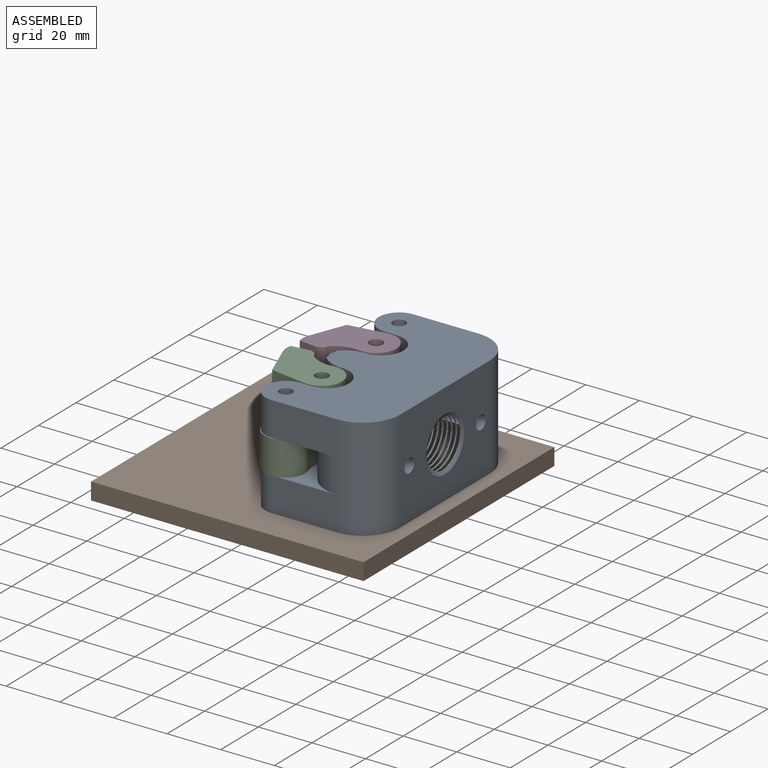
[diagram: assembled view]
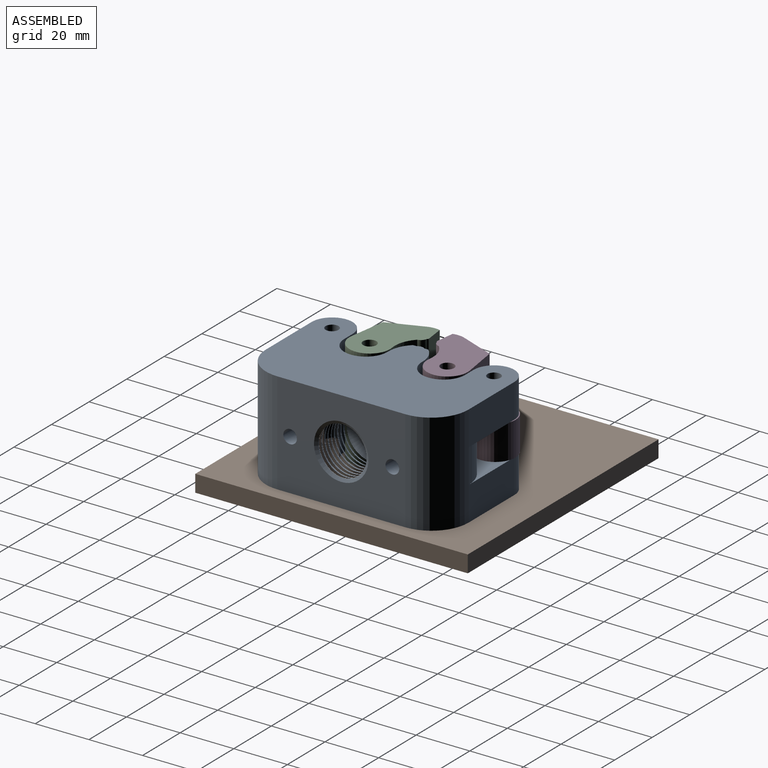
[diagram: assembled view, second angle]
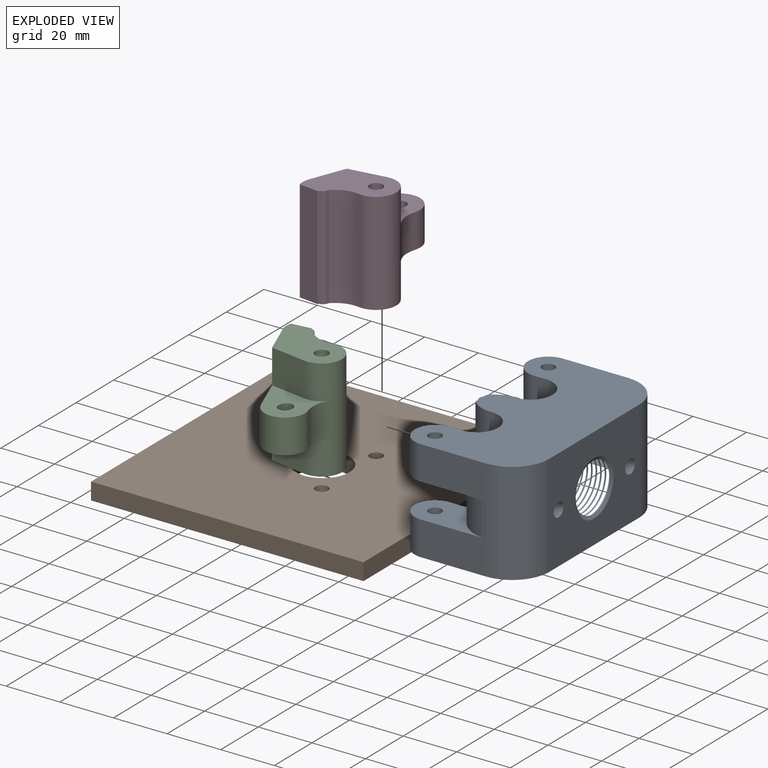
[diagram: exploded view]
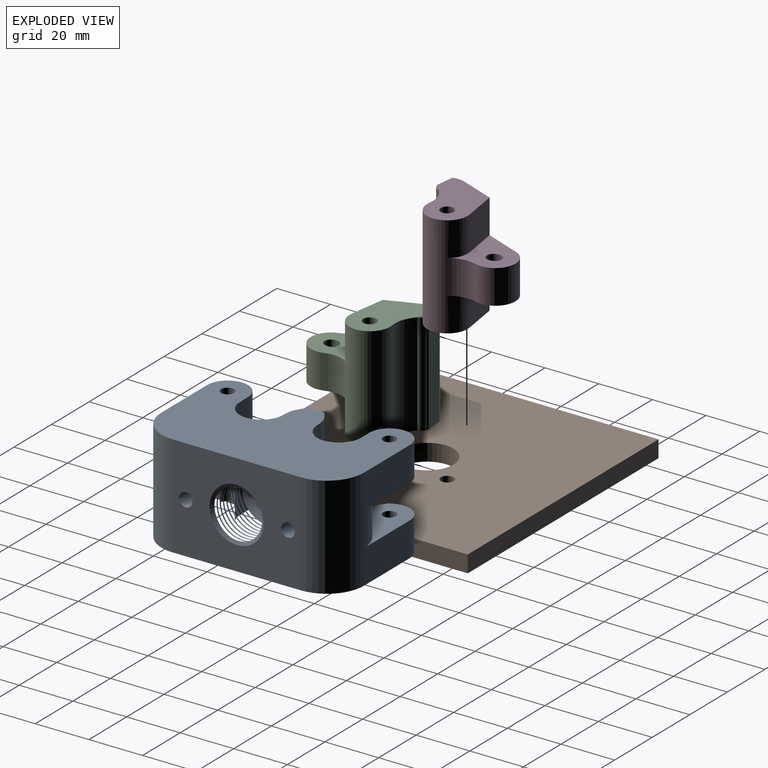
[diagram: exploded view, second angle]
ASSEMBLY  parts=4 mates=3
PART A: 41 faces, bbox 45.9x75.6x38.1 mm
  f0: plane 47.75x38.1mm, normal (1,0,0), area 1454.6mm2, adj f1,f2,f10,f11,f32,f37,f39
  f1: cylinder r=13.92mm len=38.1mm, axis (0,0,-1), area 1188.4mm2, adj f0,f8,f10,f11,f18,f21,f28,f31
  f2: cylinder r=13.92mm len=38.1mm, axis (0,0,-1), area 1188.4mm2, adj f0,f7,f10,f11,f13,f16,f23,f26
  f3: plane 38.1x1.38mm, normal (-1,0,0), area 52.4mm2, adj f4,f9,f10,f11
  f4: cylinder r=2.41mm len=38.1mm, axis (0,0,-1), area 121.5mm2, adj f3,f5,f10,f11
  f5: plane 38.1x1.38mm, normal (-1,0,0), area 52.4mm2, adj f4,f6,f10,f11
  f6: cylinder r=10.61mm len=38.1mm, axis (0,0,-1), area 352.2mm2, adj f5,f7,f10,f11
  f7: cylinder r=8.09mm len=38.1mm, axis (0,0,-1), area 862mm2, adj f2,f6,f10,f11,f15,f16,f25,f26
  f8: cylinder r=8.09mm len=38.1mm, axis (0,0,-1), area 862mm2, adj f1,f9,f10,f11,f17,f21,f27,f31
  f9: cylinder r=10.61mm len=38.1mm, axis (0,0,-1), area 352.2mm2, adj f3,f8,f10,f11
  f10: plane 75.59x45.87mm, normal (0,0,1), area 2639.8mm2, adj f0,f1,f2,f3,f4,f5,f6,f7
  f11: plane 75.59x45.87mm, normal (0,0,-1), area 2639.8mm2, adj f0,f1,f2,f3,f4,f5,f6,f7
  f12: cylinder r=7.61mm len=15.22mm, axis (0,0,-1), area 303.7mm2, adj f11,f13,f15,f16
  f13: plane 24.34x12.7mm, normal (0,-1,0), area 309.1mm2, adj f2,f11,f12,f16
  f14: cylinder r=2.41mm len=12.7mm, axis (0,0,-1), area 192.5mm2, adj f11,f16
  f15: plane 12.7x4.44mm, normal (0,1,0), area 56.4mm2, adj f7,f11,f12,f16
  f16: plane 31.95x19.86mm, normal (0,0,1), area 279mm2, adj f2,f7,f12,f13,f14,f15
  f17: plane 12.7x4.44mm, normal (0,-1,0), area 56.4mm2, adj f8,f11,f20,f21
  f18: plane 24.34x12.7mm, normal (0,1,0), area 309.1mm2, adj f1,f11,f20,f21
  f19: cylinder r=2.41mm len=12.7mm, axis (0,0,-1), area 192.5mm2, adj f11,f21
  f20: cylinder r=7.61mm len=15.22mm, axis (0,0,-1), area 303.7mm2, adj f11,f17,f18,f21
  f21: plane 31.95x19.86mm, normal (0,0,1), area 279mm2, adj f1,f8,f17,f18,f19,f20
  f22: cylinder r=7.61mm len=15.22mm, axis (0,0,-1), area 303.7mm2, adj f10,f23,f25,f26
  f23: plane 24.34x12.7mm, normal (0,-1,0), area 309.1mm2, adj f2,f10,f22,f26
  f24: cylinder r=2.41mm len=12.7mm, axis (0,0,-1), area 192.5mm2, adj f10,f26
  f25: plane 12.7x4.44mm, normal (0,1,0), area 56.4mm2, adj f7,f10,f22,f26
  f26: plane 31.95x19.86mm, normal (0,0,-1), area 279mm2, adj f2,f7,f22,f23,f24,f25
  f27: plane 12.7x4.44mm, normal (0,-1,0), area 56.4mm2, adj f8,f10,f30,f31
  f28: plane 24.34x12.7mm, normal (0,1,0), area 309.1mm2, adj f1,f10,f30,f31
  f29: cylinder r=2.41mm len=12.7mm, axis (0,0,-1), area 192.5mm2, adj f10,f31
  f30: cylinder r=7.61mm len=15.22mm, axis (0,0,-1), area 303.7mm2, adj f10,f27,f28,f31
  f31: plane 31.95x19.86mm, normal (0,0,-1), area 279mm2, adj f1,f8,f27,f28,f29,f30
  f32: cone r=10.16mm half-angle=60deg, axis (1,0,0), area 81.8mm2, adj f0,f33
  f33: cone r=9.65mm half-angle=60deg, axis (-1,0,0), area 32.5mm2, adj f32,f34
  f34: cylinder r=9.78mm len=19.55mm, axis (1,0,0), area 324.7mm2, adj f33,f36
  f35: plane 14.78x14.78mm, normal (1,0,0), area 171.7mm2, adj f36
  f36: cone r=7.45mm half-angle=60deg, axis (1,0,0), area 126.9mm2, adj f34,f35
  f37: cylinder r=2.54mm len=19.05mm, axis (1,0,0), area 304mm2, adj f0,f38
  f38: plane 5.08x5.08mm, normal (1,0,0), area 20.3mm2, adj f37
  f39: cylinder r=2.54mm len=19.05mm, axis (1,0,0), area 304mm2, adj f0,f40
  f40: plane 5.08x5.08mm, normal (1,0,0), area 20.3mm2, adj f39
PART B: 9 faces, bbox 101.6x101.6x6.4 mm
  f0: plane 101.6x6.35mm, normal (0,-1,0), area 645.2mm2, adj f1,f6,f7,f8
  f1: plane 101.6x6.35mm, normal (1,0,0), area 645.2mm2, adj f0,f2,f7,f8
  f2: plane 101.6x6.35mm, normal (0,1,0), area 645.2mm2, adj f1,f6,f7,f8
  f3: cylinder r=2.41mm len=6.35mm, axis (0,0,-1), area 96.3mm2, adj f7,f8
  f4: cylinder r=2.41mm len=6.35mm, axis (0,0,-1), area 96.3mm2, adj f7,f8
  f5: cylinder r=9.97mm len=19.95mm, axis (0,0,-1), area 398mm2, adj f7,f8
  f6: plane 101.6x6.35mm, normal (-1,0,0), area 645.2mm2, adj f0,f2,f7,f8
  f7: plane 101.6x101.6mm, normal (0,0,1), area 9973.4mm2, adj f0,f1,f2,f3,f4,f5,f6
  f8: plane 101.6x101.6mm, normal (0,0,-1), area 9973.4mm2, adj f0,f1,f2,f3,f4,f5,f6
PART C: 20 faces, bbox 35.2x30.8x38.1 mm
  f0: plane 13.23x12.7mm, normal (0.27,-0.96,0), area 174.6mm2, adj f6,f8,f11,f19
  f1: cylinder r=10.61mm len=38.1mm, axis (0,0,-1), area 382.2mm2, adj f2,f8,f10,f11
  f2: cylinder r=2.41mm len=38.1mm, axis (0,0,-1), area 121.5mm2, adj f1,f3,f10,f11
  f3: plane 38.1x0.52mm, normal (0.36,0.93,0), area 21.2mm2, adj f2,f4,f10,f11
  f4: plane 38.1x6.16mm, normal (-0.52,0.85,0), area 275.1mm2, adj f3,f5,f10,f11
  f5: cylinder r=7.49mm len=38.1mm, axis (0,0,-1), area 178.9mm2, adj f4,f6,f10,f11
  f6: plane 38.1x20.21mm, normal (-0.7,-0.72,0), area 710.2mm2, adj f0,f5,f7,f10,f11,f15,f18,f19
  f7: plane 13.23x12.7mm, normal (0.27,-0.96,0), area 174.6mm2, adj f6,f8,f10,f18
  f8: cylinder r=7.56mm len=38.1mm, axis (0,0,-1), area 887.2mm2, adj f0,f1,f7,f10,f11,f16,f18,f19
  f9: cylinder r=2.48mm len=38.1mm, axis (0,0,-1), area 594mm2, adj f10,f11
  f10: plane 30.77x18.58mm, normal (0,0,1), area 363.5mm2, adj f1,f2,f3,f4,f5,f6,f7,f8
  f11: plane 30.77x18.58mm, normal (0,0,-1), area 363.5mm2, adj f0,f1,f2,f3,f4,f5,f6,f8
  f12: cylinder r=2.43mm len=12.7mm, axis (0,0,-1), area 97mm2, adj f13,f17,f18,f19
  f13: plane 12.7x0.59mm, normal (0.96,0.27,0), area 7.8mm2, adj f12,f14,f18,f19
  f14: cylinder r=2.43mm len=12.7mm, axis (0,0,-1), area 97mm2, adj f13,f17,f18,f19
  f15: cylinder r=7.56mm len=12.85mm, axis (0,0,-1), area 296.4mm2, adj f6,f16,f18,f19
  f16: cylinder r=10.61mm len=12.7mm, axis (0,0,-1), area 125.5mm2, adj f8,f15,f18,f19
  f17: plane 12.7x0.59mm, normal (-0.96,-0.27,0), area 7.8mm2, adj f12,f14,f18,f19
  f18: plane 23.17x21.84mm, normal (0,0,1), area 229.9mm2, adj f6,f7,f8,f12,f13,f14,f15,f16
  f19: plane 23.17x21.84mm, normal (0,0,-1), area 229.9mm2, adj f0,f6,f8,f12,f13,f14,f15,f16
PART D: 20 faces, bbox 35.2x30.8x38.1 mm
  f0: plane 13.23x12.7mm, normal (-0.27,-0.96,0), area 174.6mm2, adj f4,f6,f11,f19
  f1: plane 38.1x0.52mm, normal (-0.36,0.93,0), area 21.2mm2, adj f2,f8,f10,f11
  f2: cylinder r=2.41mm len=38.1mm, axis (0,0,-1), area 121.5mm2, adj f1,f3,f10,f11
  f3: cylinder r=10.61mm len=38.1mm, axis (0,0,-1), area 382.2mm2, adj f2,f4,f10,f11
  f4: cylinder r=7.56mm len=38.1mm, axis (0,0,-1), area 887.2mm2, adj f0,f3,f5,f10,f11,f12,f18,f19
  f5: plane 13.23x12.7mm, normal (-0.27,-0.96,0), area 174.6mm2, adj f4,f6,f10,f18
  f6: plane 38.1x20.21mm, normal (0.7,-0.72,0), area 710.2mm2, adj f0,f5,f7,f10,f11,f13,f18,f19
  f7: cylinder r=7.49mm len=38.1mm, axis (0,0,-1), area 178.9mm2, adj f6,f8,f10,f11
  f8: plane 38.1x6.16mm, normal (0.52,0.85,0), area 275.1mm2, adj f1,f7,f10,f11
  f9: cylinder r=2.48mm len=38.1mm, axis (0,0,-1), area 594mm2, adj f10,f11
  f10: plane 30.77x18.58mm, normal (0,0,1), area 363.5mm2, adj f1,f2,f3,f4,f5,f6,f7,f8
  f11: plane 30.77x18.58mm, normal (0,0,-1), area 363.5mm2, adj f0,f1,f2,f3,f4,f6,f7,f8
  f12: cylinder r=10.61mm len=12.7mm, axis (0,0,-1), area 125.5mm2, adj f4,f13,f18,f19
  f13: cylinder r=7.56mm len=12.85mm, axis (0,0,-1), area 296.4mm2, adj f6,f12,f18,f19
  f14: cylinder r=2.43mm len=12.7mm, axis (0,0,-1), area 97mm2, adj f15,f17,f18,f19
  f15: plane 12.7x0.59mm, normal (-0.96,0.27,0), area 7.8mm2, adj f14,f16,f18,f19
  f16: cylinder r=2.43mm len=12.7mm, axis (0,0,-1), area 97mm2, adj f15,f17,f18,f19
  f17: plane 12.7x0.59mm, normal (0.96,-0.27,0), area 7.8mm2, adj f14,f16,f18,f19
  f18: plane 23.17x21.84mm, normal (0,0,1), area 229.9mm2, adj f4,f5,f6,f12,f13,f14,f15,f16
  f19: plane 23.17x21.84mm, normal (0,0,-1), area 229.9mm2, adj f0,f4,f6,f12,f13,f14,f15,f16
PLACE A t=(-60.66,0,6.35)mm
PLACE B at identity fixed
PLACE C rot(axis=(0,0,-1),24.4deg) t=(33.09,60.57,6.35)mm
PLACE D rot(axis=(0,0,-1),155.6deg) t=(3.9,-73.81,6.35)mm
MATE revolute D.f4 <-> B.f3  axis (0,0,-1) through (9.78,14.48,6.35)mm
MATE revolute C.f8 <-> B.f4  axis (0,0,-1) through (9.78,-14.48,6.35)mm
MATE slider A.f0 <-> B.f1  axis (1,0,0) through (45.63,0,6.35)mm
